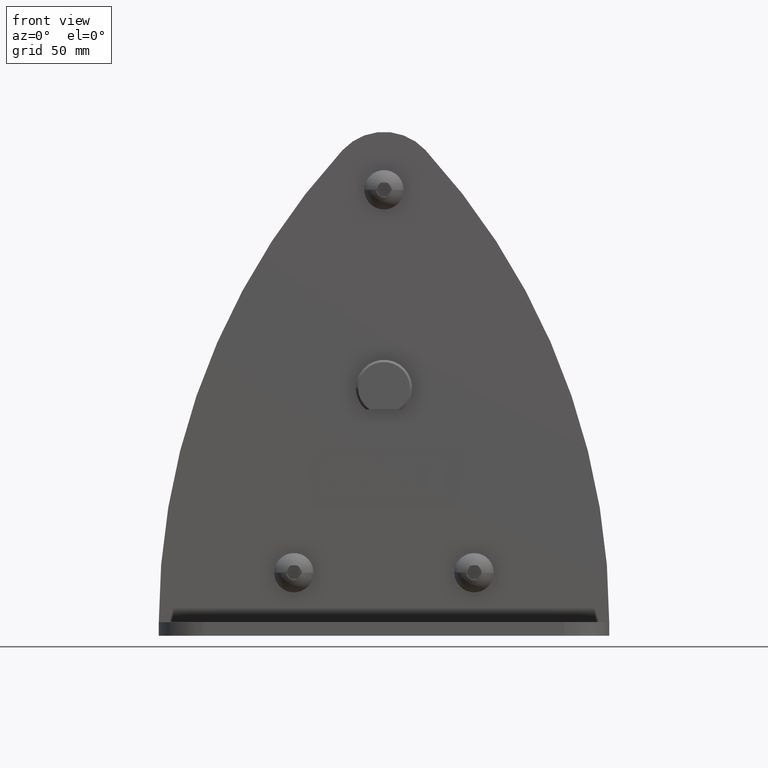
[diagram: clean part render]
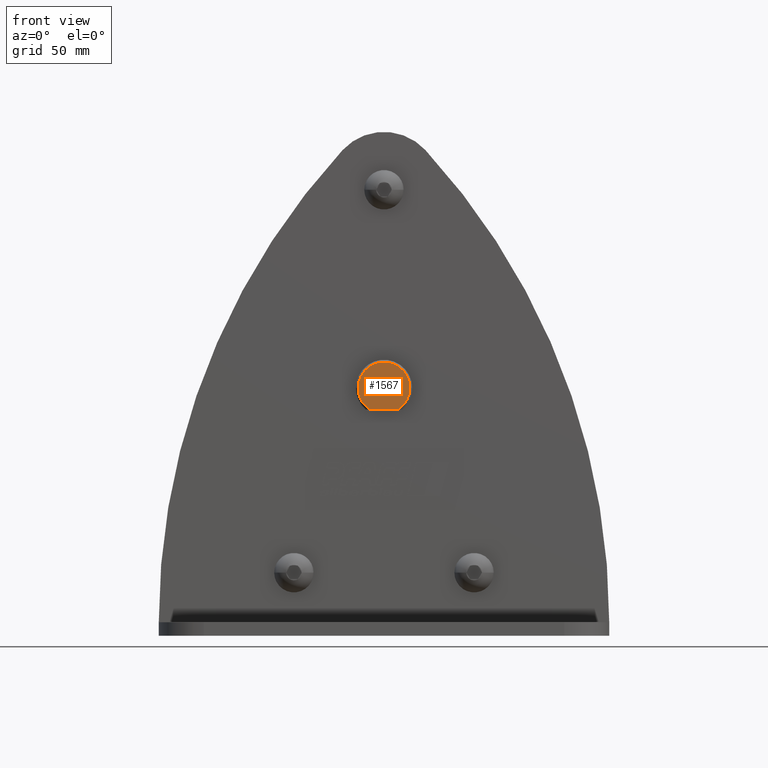
[diagram: same view with one face highlighted and labeled with its STEP entity id]
A machine part, front view. The second image highlights one B-rep face of the part: STEP entity #1567.
In plain terms, the highlighted planar face has unit normal (0, -1, 0).
Its self-contained STEP definition (entity closure, byte-faithful):
#1567=ADVANCED_FACE('',(#3393),#3394,.T.);
#3393=FACE_OUTER_BOUND('',#5499,.T.);
#3394=PLANE('',#5500);
#5499=EDGE_LOOP('',(#10442,#10443,#10444,#10445));
#5500=AXIS2_PLACEMENT_3D('',#10446,#10447,#10448);
#10442=ORIENTED_EDGE('',*,*,#14372,.T.);
#10443=ORIENTED_EDGE('',*,*,#14398,.T.);
#10444=ORIENTED_EDGE('',*,*,#13007,.T.);
#10445=ORIENTED_EDGE('',*,*,#13003,.T.);
#10446=CARTESIAN_POINT('',(5.75,-27.5,0.0));
#10447=DIRECTION('',(0.0,-1.0,0.0));
#10448=DIRECTION('',(1.0,0.0,0.0));
#13003=EDGE_CURVE('',#15794,#15799,#15801,.T.);
#13007=EDGE_CURVE('',#15804,#15794,#15807,.T.);
#14372=EDGE_CURVE('',#15799,#17839,#17841,.T.);
#14398=EDGE_CURVE('',#17839,#15804,#17874,.T.);
#15794=VERTEX_POINT('',#21872);
#15799=VERTEX_POINT('',#21878);
#15801=CIRCLE('',#21889,11.5);
#15804=VERTEX_POINT('',#21892);
#15807=CIRCLE('',#21896,11.5);
#17839=VERTEX_POINT('',#24733);
#17841=LINE('',#24744,#24745);
#17874=CIRCLE('',#24796,11.5);
#21872=CARTESIAN_POINT('',(-11.5,-27.5,1.40834381901946E-015));
#21878=CARTESIAN_POINT('',(-6.48074069840786,-27.5,-9.5));
#21889=AXIS2_PLACEMENT_3D('',#27217,#27218,#27219);
#21892=CARTESIAN_POINT('',(11.5,-27.5,-1.40834381901946E-015));
#21896=AXIS2_PLACEMENT_3D('',#27224,#27225,#27226);
#24733=CARTESIAN_POINT('',(6.48074069840786,-27.5,-9.5));
#24744=CARTESIAN_POINT('',(2.875,-27.5,-9.5));
#24745=VECTOR('',#28740,1.0);
#24796=AXIS2_PLACEMENT_3D('',#28771,#28772,#28773);
#27217=CARTESIAN_POINT('',(0.0,-27.5,0.0));
#27218=DIRECTION('',(0.0,-1.0,0.0));
#27219=DIRECTION('',(1.0,0.0,0.0));
#27224=CARTESIAN_POINT('',(0.0,-27.5,0.0));
#27225=DIRECTION('',(0.0,-1.0,0.0));
#27226=DIRECTION('',(1.0,0.0,0.0));
#28740=DIRECTION('',(1.0,0.0,0.0));
#28771=CARTESIAN_POINT('',(0.0,-27.5,0.0));
#28772=DIRECTION('',(0.0,-1.0,0.0));
#28773=DIRECTION('',(1.0,0.0,0.0));